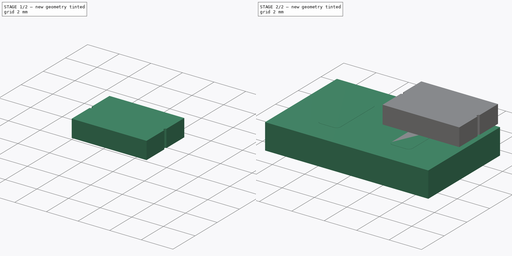
[diagram: build sequence overview — one tinted view per stage of 2, left to right]
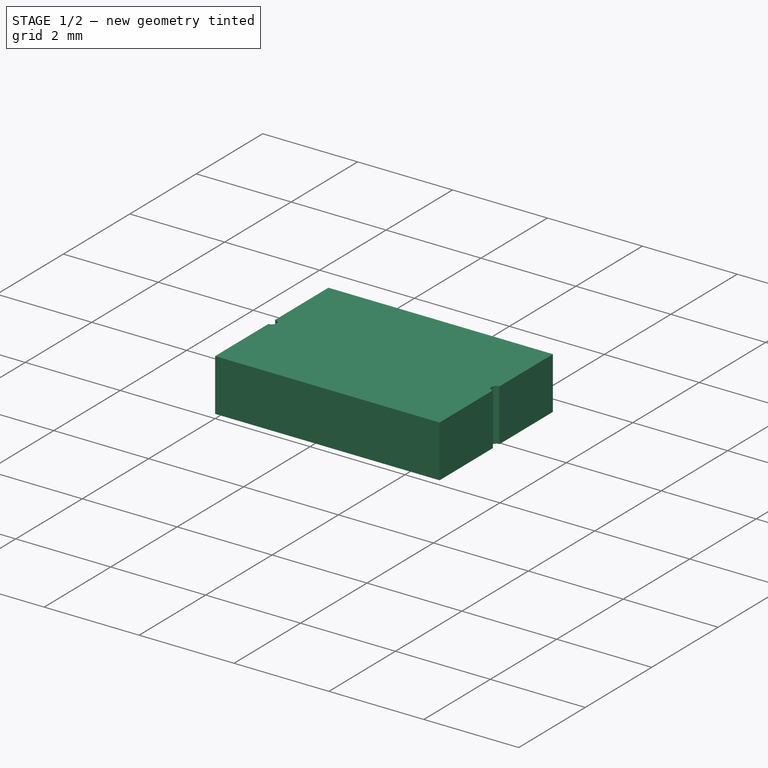
[diagram: stage 1 of 2 — iso view after this stage's code; geometry added in this stage tinted green]
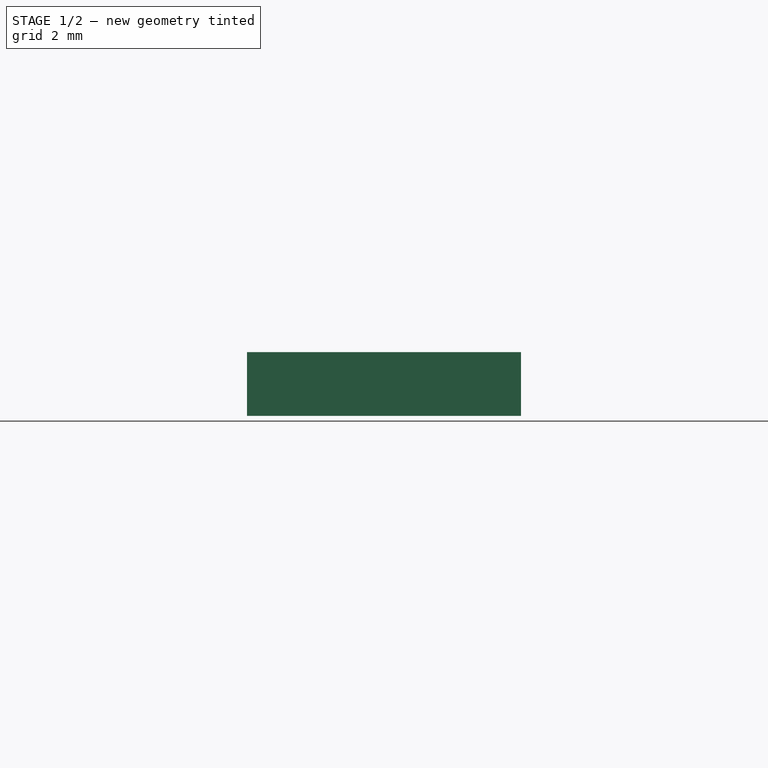
[diagram: stage 1 of 2 — front view after this stage's code; geometry added in this stage tinted green]
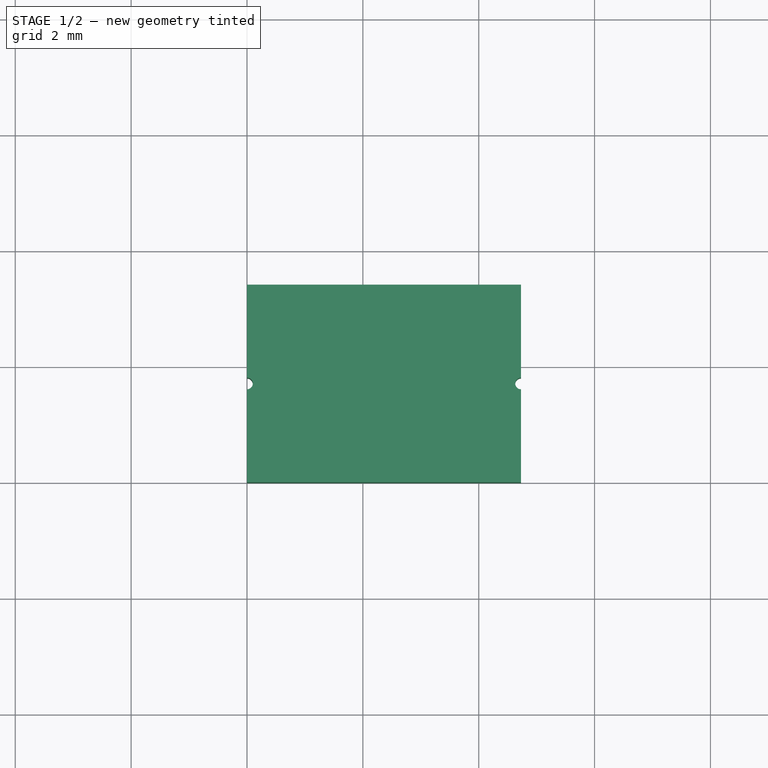
[diagram: stage 1 of 2 — top view after this stage's code; geometry added in this stage tinted green]
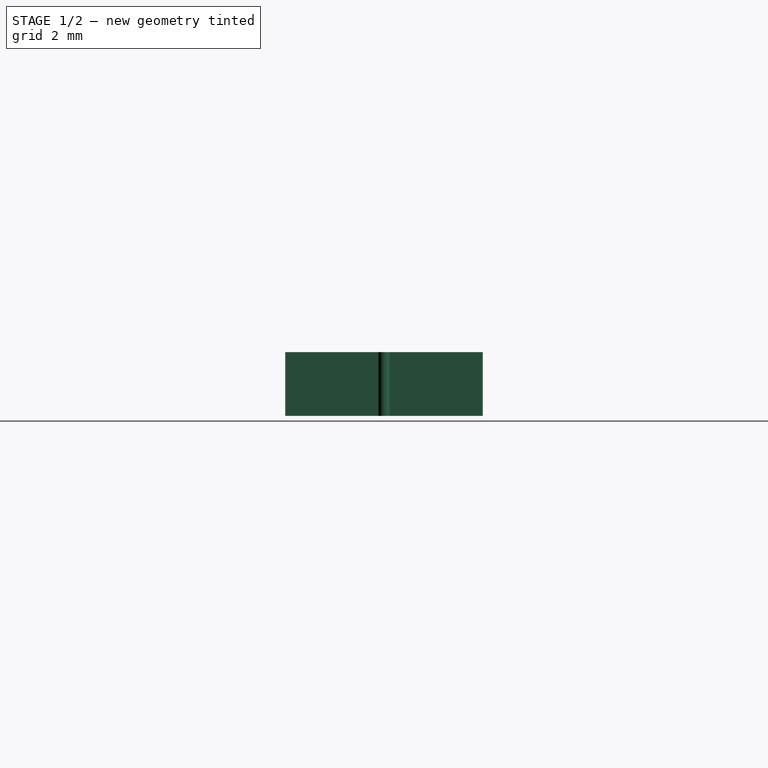
[diagram: stage 1 of 2 — right view after this stage's code; geometry added in this stage tinted green]
FCSTD DOCUMENT  (FreeCAD 0.19R22665 (Git))
Label: MF-MSMF050-2
License: All rights reserved
LicenseURL: http://en.wikipedia.org/wiki/All_rights_reserved
objects: Part::FeaturePython×5, Sketcher::SketchObject×3, PartDesign::Pad×1, PartDesign::Pocket×1, App::DocumentObjectGroup×1, PartDesign::Body×1, Part::Feature×1
note: 14 computed .brp shape members not serialized (recipe doc carries the construction recipe); baked Part::Feature solids carry a one-line shape summary decoded from their .brp

FEATURE [Sketcher::SketchObject] Sketch
  MapMode = 5
  Support = -> [XY_Plane]
  sketch-geometry (4):
    g0: LineSegment StartX=0 StartY=0 StartZ=0 EndX=4.73 EndY=0 EndZ=0
    g1: LineSegment StartX=4.73 StartY=0 StartZ=0 EndX=4.73 EndY=3.41 EndZ=0
    g2: LineSegment StartX=4.73 StartY=3.41 StartZ=0 EndX=0 EndY=3.41 EndZ=0
    g3: LineSegment StartX=0 StartY=3.41 StartZ=0 EndX=0 EndY=0 EndZ=0
  constraints (11):
    c: Coincident(g0,g1)
    c: Coincident(g1,g2)
    c: Coincident(g2,g3)
    c: Coincident(g3,g0)
    c: Horizontal(g0)
    c: Horizontal(g2)
    c: Vertical(g1)
    c: Vertical(g3)
    c: Coincident(g0,g-1)
    c: Distance(g2) = 4.73
    c: Distance(g1) = 3.41
FEATURE [PartDesign::Pad] Pad
  Direction = (1,1,1)
  Length = 1.1
  Length2 = 100
  Profile = -> Sketch
  Type = 0
FEATURE [Sketcher::SketchObject] Sketch001
  ExternalGeometry = -> [Pad]
  MapMode = 5
  Placement = pos=(0,0,1.1) rot=(0,0,1;0rad)
  Support = -> [Pad]
  sketch-geometry (5):
    g0: LineSegment [constr] StartX=0 StartY=1.705 StartZ=0 EndX=4.73 EndY=1.705 EndZ=0
    g1: ArcOfCircle CenterX=0 CenterY=1.705 CenterZ=0 NormalX=0 NormalY=0 NormalZ=1 AngleXU=0 Radius=0.1 StartAngle=4.71239 EndAngle=7.85398
    g2: ArcOfCircle CenterX=4.73 CenterY=1.705 CenterZ=0 NormalX=0 NormalY=0 NormalZ=1 AngleXU=0 Radius=0.1 StartAngle=1.5708 EndAngle=4.71239
    g3: LineSegment StartX=0 StartY=1.805 StartZ=0 EndX=0 EndY=1.605 EndZ=0
    g4: LineSegment StartX=4.73 StartY=1.805 StartZ=0 EndX=4.73 EndY=1.605 EndZ=0
  constraints (15):
    c: PointOnObject(g0,g-3)
    c: PointOnObject(g0,g-4)
    c: Symmetric(g-3,g-1,g0)
    c: PointOnObject(g1,g-3)
    c: PointOnObject(g1,g-3)
    c: Coincident(g1,g0)
    c: Radius(g1) = 0.1
    c: PointOnObject(g2,g-4)
    c: PointOnObject(g2,g-4)
    c: Coincident(g2,g0)
    c: Equal(g2,g1)
    c: Coincident(g3,g1)
    c: Coincident(g3,g1)
    c: Coincident(g4,g2)
    c: Coincident(g4,g2)
FEATURE [PartDesign::Pocket] Pocket
  BaseFeature = -> Pad
  Length = 5
  Length2 = 100
  Profile = -> Sketch001
  Type = 1
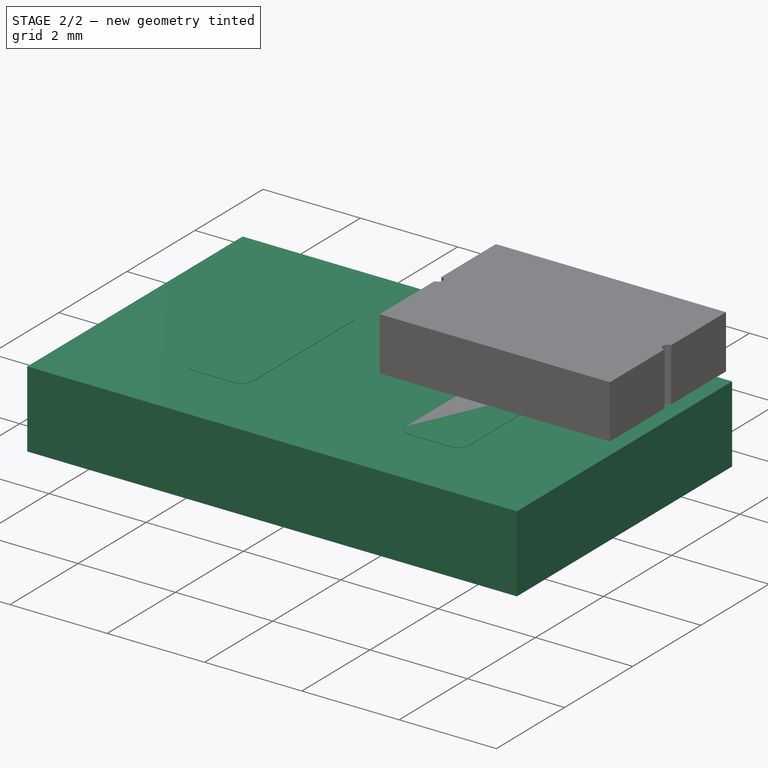
[diagram: stage 2 of 2 — iso view after this stage's code; geometry added in this stage tinted green]
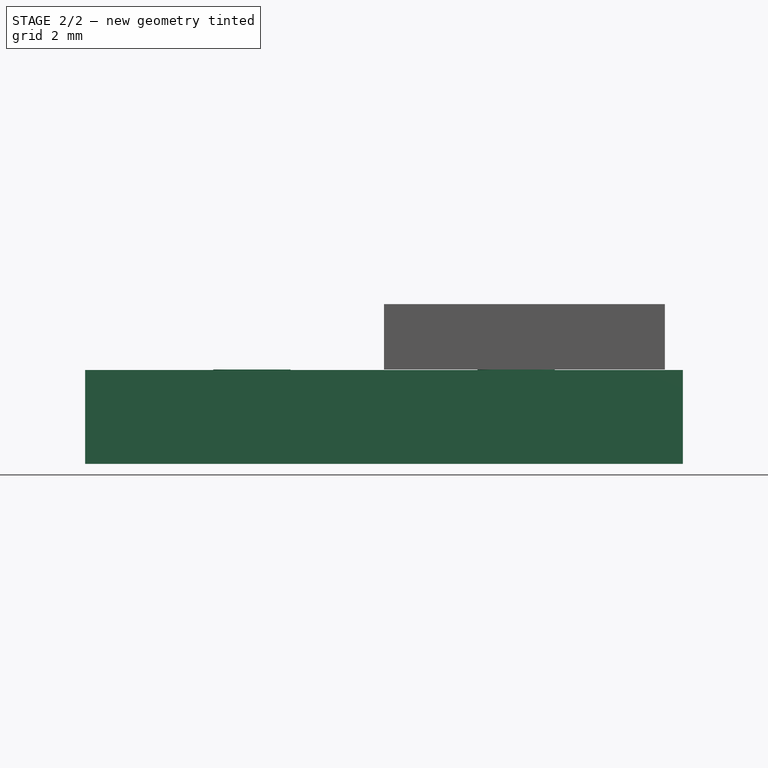
[diagram: stage 2 of 2 — front view after this stage's code; geometry added in this stage tinted green]
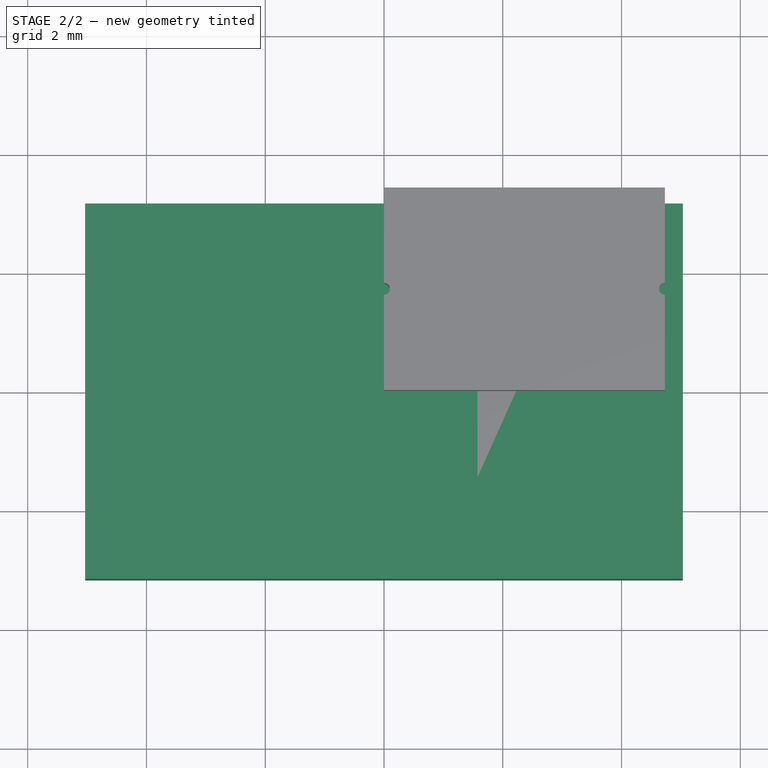
[diagram: stage 2 of 2 — top view after this stage's code; geometry added in this stage tinted green]
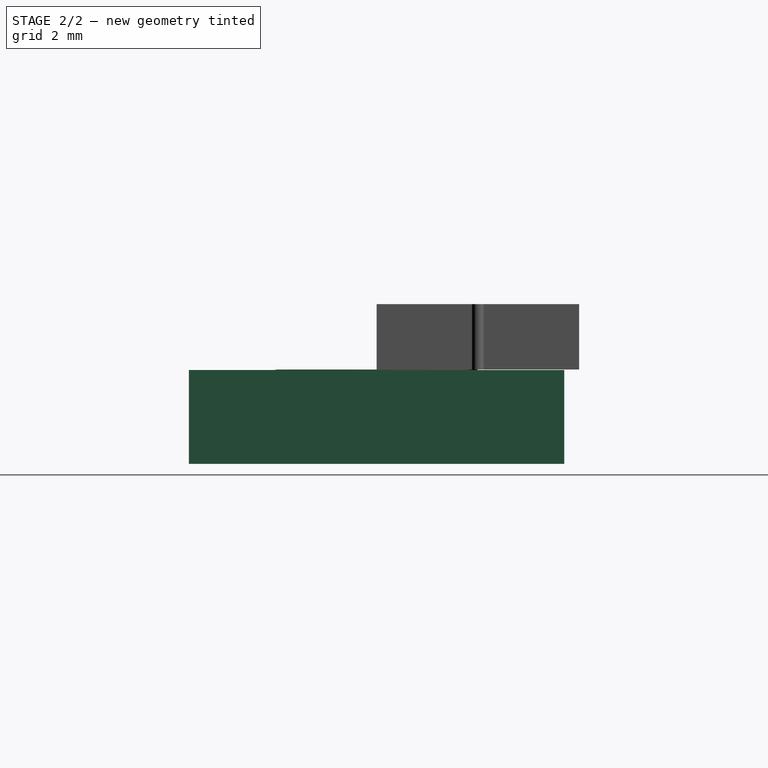
[diagram: stage 2 of 2 — right view after this stage's code; geometry added in this stage tinted green]
FEATURE [Sketcher::SketchObject] Sketch002
  ExternalGeometry = -> [Pocket]
  MapMode = 5
  Placement = pos=(0,0,1.1) rot=(0,0,1;0rad)
  Support = -> [Pocket]
  sketch-geometry (8):
    g0: LineSegment StartX=0 StartY=3.41 StartZ=0 EndX=0.3 EndY=3.41 EndZ=0
    g1: LineSegment StartX=0.3 StartY=3.41 StartZ=0 EndX=0.3 EndY=0 EndZ=0
    g2: LineSegment StartX=0.3 StartY=0 StartZ=0 EndX=0 EndY=0 EndZ=0
    g3: LineSegment StartX=0 StartY=0 StartZ=0 EndX=0 EndY=3.41 EndZ=0
    g4: LineSegment StartX=4.73 StartY=3.41 StartZ=0 EndX=4.43 EndY=3.41 EndZ=0
    g5: LineSegment StartX=4.43 StartY=3.41 StartZ=0 EndX=4.43 EndY=0 EndZ=0
    g6: LineSegment StartX=4.43 StartY=0 StartZ=0 EndX=4.73 EndY=0 EndZ=0
    g7: LineSegment StartX=4.73 StartY=0 StartZ=0 EndX=4.73 EndY=3.41 EndZ=0
  constraints (22):
    c: Coincident(g0,g1)
    c: Coincident(g1,g2)
    c: Coincident(g2,g3)
    c: Coincident(g3,g0)
    c: Horizontal(g0)
    c: Horizontal(g2)
    c: Vertical(g1)
    c: Vertical(g3)
    c: Coincident(g0,g-3)
    c: PointOnObject(g1,g-1)
    c: Coincident(g4,g5)
    c: Coincident(g5,g6)
    c: Coincident(g6,g7)
    c: Coincident(g7,g4)
    c: Horizontal(g4)
    c: Horizontal(g6)
    c: Vertical(g5)
    c: Vertical(g7)
    c: Coincident(g4,g-5)
    c: PointOnObject(g5,g-1)
    c: Distance(g4) = 0.3
    c: Equal(g0,g4)
FEATURE [Part::FeaturePython] FCrtYd_lines  label="FCrtYd"  # a2plus imported part (geometry in sourceFile) (typed FeaturePython)
  fixedPosition = true
FEATURE [Part::FeaturePython] FFab_lines  label="FFab"  # a2plus imported part (geometry in sourceFile) (typed FeaturePython)
  fixedPosition = true
FEATURE [Part::FeaturePython] Filk_lines  label="FrontSilk"  # a2plus imported part (geometry in sourceFile) (typed FeaturePython)
  fixedPosition = true
FEATURE [Part::FeaturePython] TopPads  # a2plus imported part (geometry in sourceFile) (typed FeaturePython)
  fixedPosition = true
FEATURE [Part::FeaturePython] newPCB  label="Pcb"  # a2plus imported part (geometry in sourceFile) (typed FeaturePython)
  fixedPosition = true
FEATURE [App::DocumentObjectGroup] MF_MSMF_1812_4532Metric_Pad1_30x3_40mm_HandSolder_fp
  Group = -> [FCrtYd_lines,FFab_lines,Filk_lines,TopPads,newPCB]
FEATURE [PartDesign::Body] Body  label="MF-MSMF050-2"
  Group = -> [Sketch,Pad,Sketch001,Pocket,Sketch002]
  Origin = -> Origin
  Placement = pos=(0,0.1,0) rot=(0,0,1;0rad)
FEATURE [Part::Feature] Shape001  label="MF-MSMF050"
  shape: bbox 4.73 x 3.41 x 1.1 mm, 14 faces (baked)
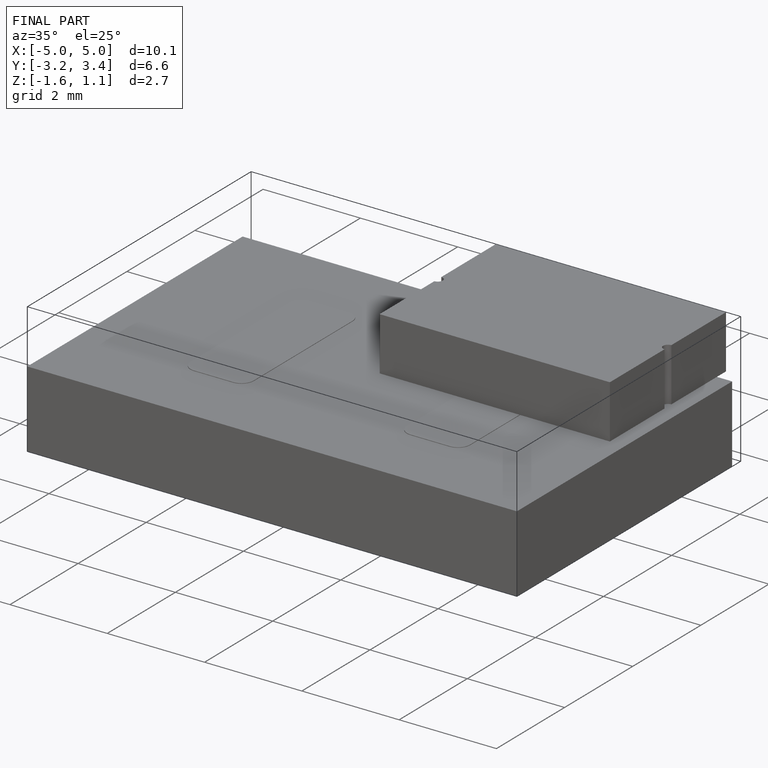
[diagram: finished part — iso view with bounding-box wireframe]
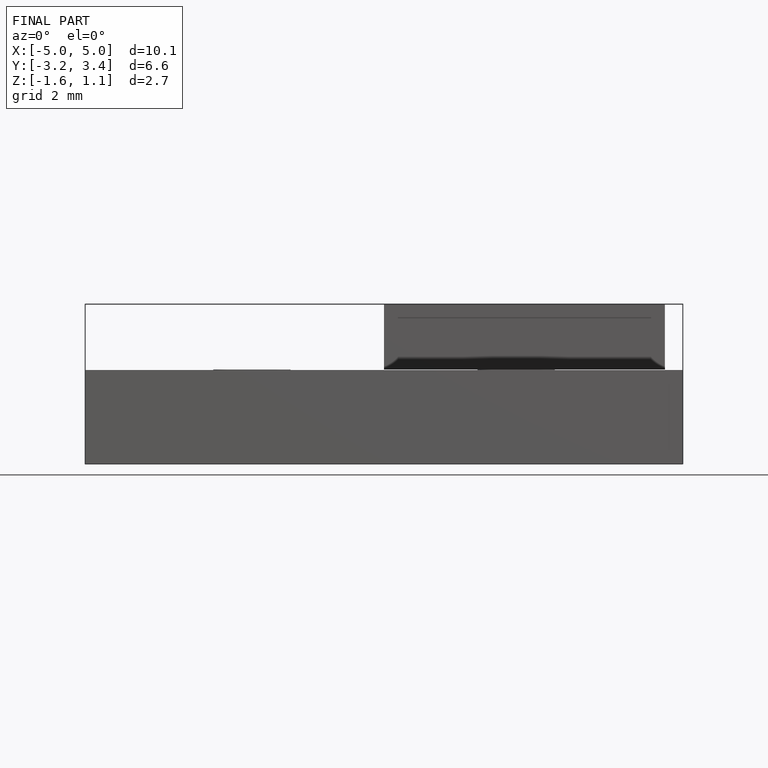
[diagram: finished part — front view with bounding-box wireframe]
